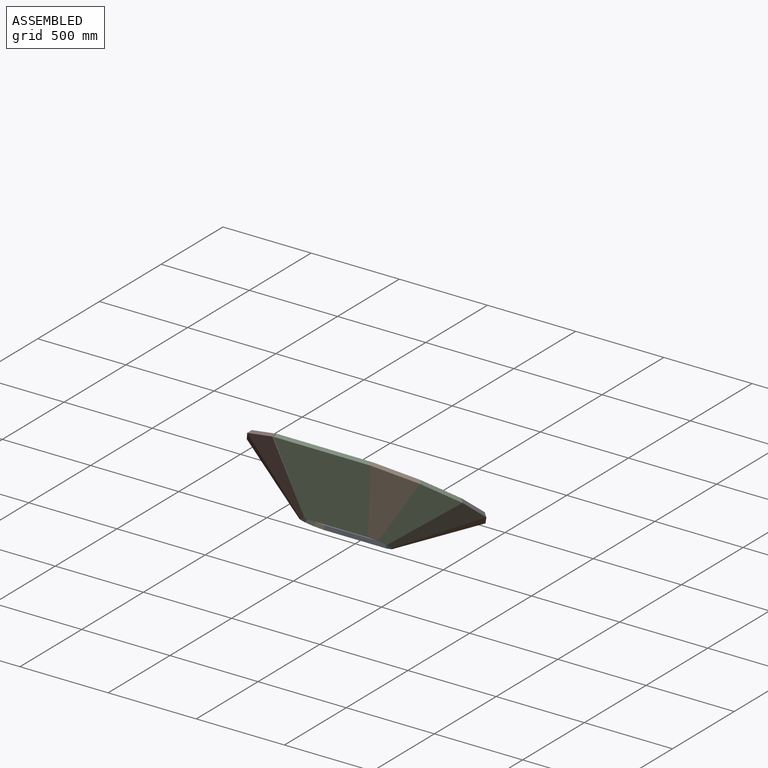
[diagram: assembled view]
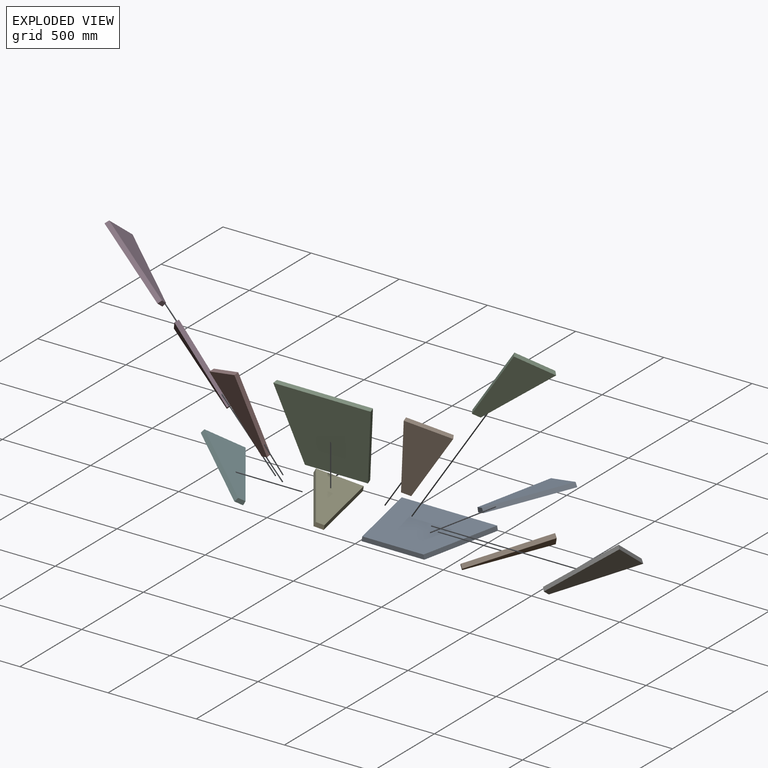
[diagram: exploded view]
GUIDED TOUR — MATED ASSEMBLY (Onshape document fef243385f15503025100094, AutoMate assembly fef243385f15503025100094_fdf8a2c3b585b18445a89479_61b1119e6c412c0903139617_default)

This assembly has 12 components, labeled P0..P11 below (a component is one placed occurrence of a part; the same part can appear more than once), held together by 11 mates. A mate is a constraint between two components; its type names the relative motion it leaves free:
  FASTENED — locks the two components together rigidly (no relative motion).
Axis/direction vectors are unit vectors and 'through' points are millimeter coordinates, both in the assembly's world frame.

MATES
  1. FASTENED "Fastened 8": P4 <-> P5, direction (0.568, -0.813, -0.126) through (-354.65, 169.88, 44.73) mm
  2. FASTENED "Fastened 10": P3 <-> P11, direction (0.779, -0.196, -0.596) through (-429.61, -49.61, 211.94) mm
  3. FASTENED "Fastened 2": P8 <-> P1, direction (0.568, 0.813, 0.126) through (354.65, 169.88, 44.73) mm
  4. FASTENED "Fastened 5": P2 <-> P9, direction (0.573, -0.091, 0.814) through (356.33, -151.88, 289.85) mm
  5. FASTENED "Fastened 4": P6 <-> P2, direction (0.779, 0.196, 0.596) through (429.61, -49.61, 211.94) mm
  6. FASTENED "Fastened 9": P5 <-> P3, direction (0.777, -0.527, -0.344) through (-428.99, 68.10, 122.26) mm
  7. FASTENED "Fastened 1": P0 <-> P8, direction (0.208, 0.978, 0.000) through (226.39, 228.60, 0.00) mm
  8. FASTENED "Fastened 3": P1 <-> P6, direction (0.777, 0.527, 0.344) through (428.99, 68.10, 122.26) mm
  9. FASTENED "Fastened 7": P0 <-> P4, direction (0.208, -0.978, 0.000) through (-226.39, 228.60, 0.00) mm
  10. FASTENED "Fastened 11": P11 <-> P7, direction (0.573, 0.091, -0.814) through (-356.33, -151.88, 289.85) mm
  11. FASTENED "Fastened 6": P9 <-> P10, direction (0.214, -0.258, 0.942) through (228.69, -211.44, 335.22) mm

ASSEMBLY ORDER
  1. P4 — the base component [order verified]
  2. P0 [order verified]
  3. P10 [order verified]
  4. P7 [order verified]
  5. P5 [order verified]
  6. P11 [order verified]
  7. P8 [order verified]
  8. P9 [order verified]
  9. P1 [order verified]
  10. P2 [order verified]
  11. P3 [order verified]
  12. P6 [order verified]
Order-tag legend:
  [order verified] — this step's position reverses a verified removal order: the component was checked to insert without passing through the ones already placed.

Of the 12 components, 12 carry the full construction recipe — the FeatureScript program that regenerates the part's solid from scratch; the rest are supplied as boundary geometry only.
Each toured component is shown spotlighted twice — in the assembled view, then in the exploded view, where a leader line traces a displaced component back to its assembled socket (saturated green if recipe-attached, orange if geometry-only; every other component desaturated gray) — followed by its recipe or geometry summary and the mates that hold it.
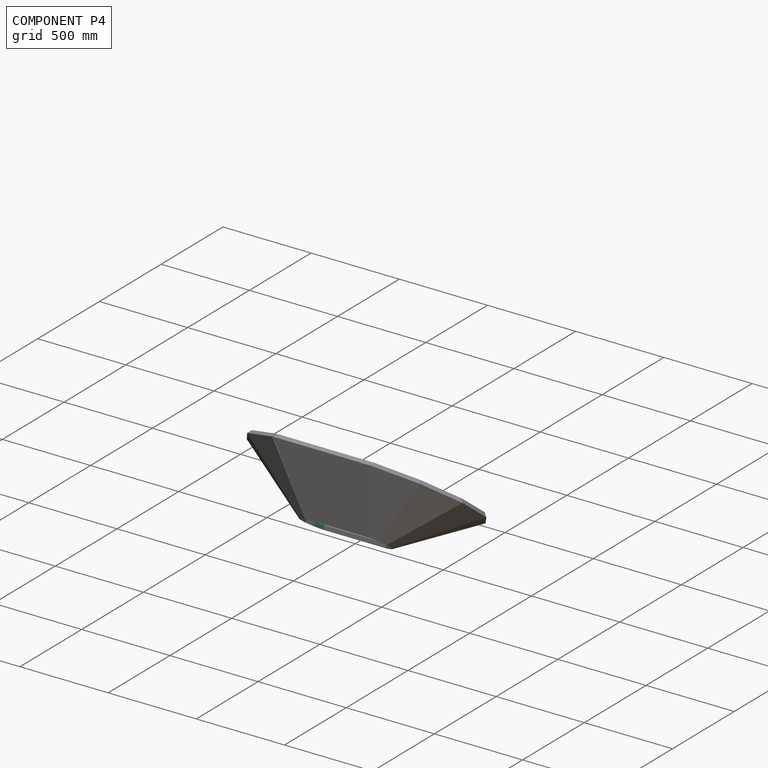
[diagram: component P4 — assembled]
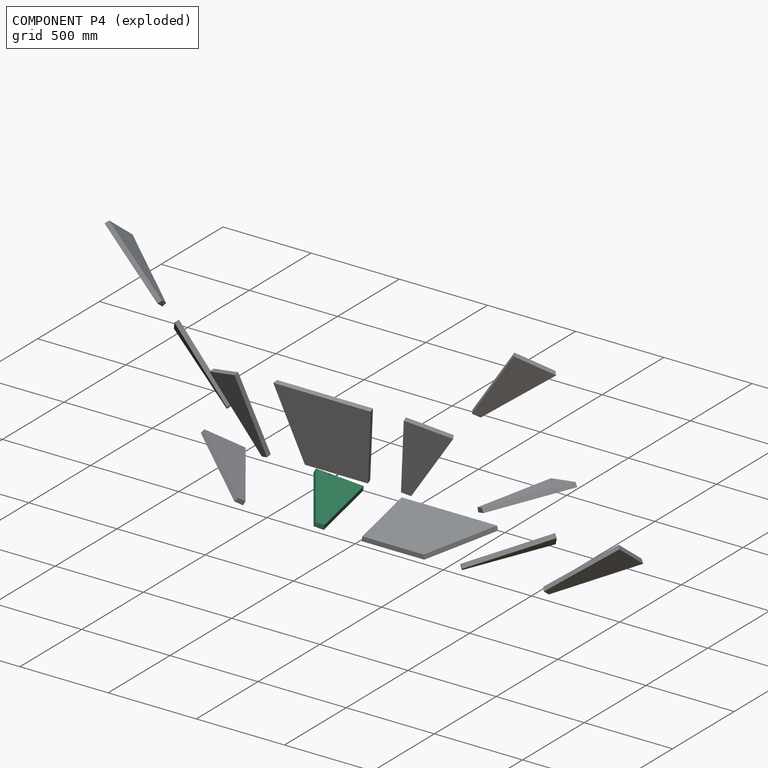
[diagram: component P4 — exploded]
COMPONENT P4 — same part as P1 (CADFS 00753921); its construction recipe is shown at P1.
Held by: FASTENED mate "Fastened 8" to P5; FASTENED mate "Fastened 7" to P0.
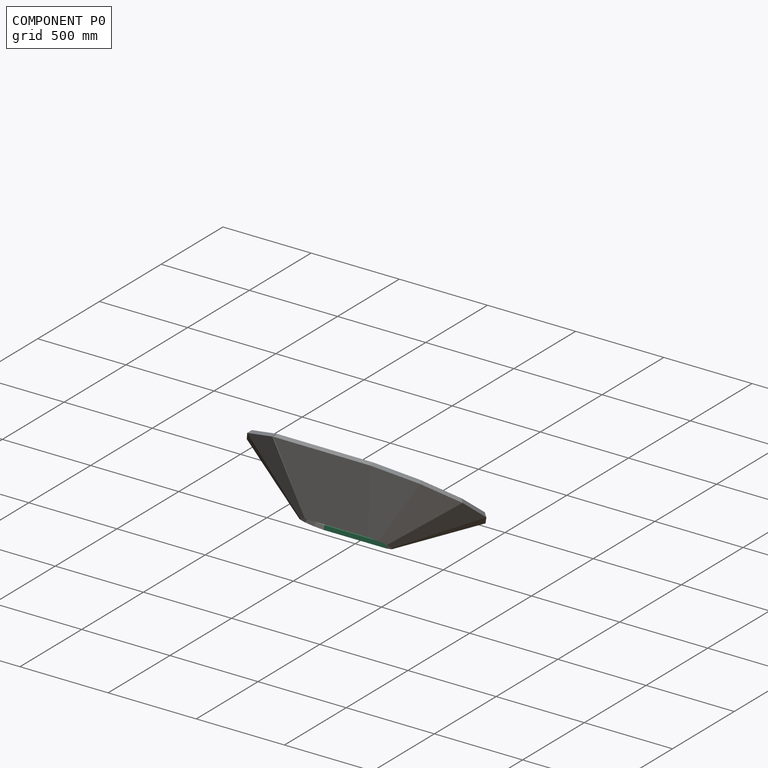
[diagram: component P0 — assembled]
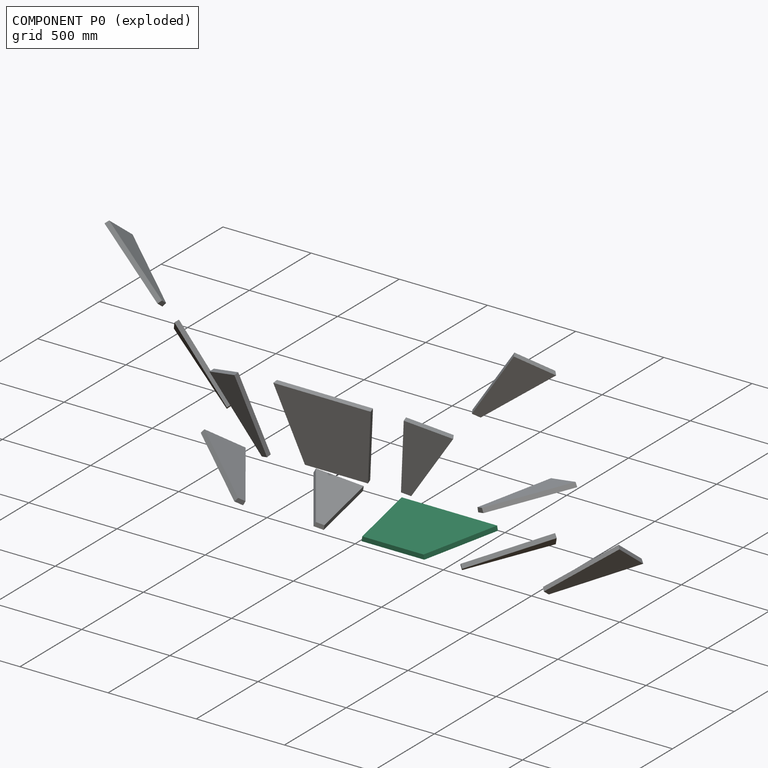
[diagram: component P0 — exploded]
COMPONENT P0 — recipe-attached (CADFS 00753922, mesh-verified: the recipe's output STEP matches this component's geometry to below the mesh-comparison resolution (tessellation chordal tolerance ~1.07 mm)).
Held by: FASTENED mate "Fastened 1" to P8; FASTENED mate "Fastened 7" to P4.
Construction recipe (FeatureScript — the CAD program that rebuilds this solid; sketch coordinates are in the units given by the * unit suffixes, e.g. mm):

FeatureScript 1511;
import(path : "onshape/std/geometry.fs", version : "1511.0");
import(path : "onshape/std/common.fs", version : "1511.0");
const mm = millimeter;
const VERTEX = EntityType.VERTEX;
const EDGE = EntityType.EDGE;
const FACE = EntityType.FACE;
const BODY = EntityType.BODY;
function v(x, y){return vector(x, y);}
function OD(order){return orderDisambiguation(order);}
function OSD(set){return originalSetDisambiguation(set);}
function TD(topology){return topologyDisambiguation(topology);}
function TDD(query){return trueDependencyDisambiguation(query);}
function sQuery(a, b, c) {return sketchEntityQuery(a, b, c);}

annotation { "Feature Type Name" : "Feature", "Feature Type Description" : "" }
export const myFeature = defineFeature(function(context is Context, id is Id, definition is map)
    precondition{}
    {
        {
            assignVariable(context, id + "F0", {"name" : "Chamfer", "anyValue" : 9});
        }
        {
            var Q0;
            Q0=qCreatedBy(makeId("Top.planeOp"),FACE);
            var sketch = newSketch(context, id + "F1", { "sketchPlane" : qUnion([Q0])});
            skLineSegment(sketch, "E0", {"start": v(-177.8, 0) * mm, "end": v(177.8, 0) * mm});
            skLineSegment(sketch, "E1", {"start": v(177.8, 0) * mm, "end": v(274.98, 457.2) * mm});
            skLineSegment(sketch, "E2", {"start": v(274.98, 457.2) * mm, "end": v(-274.98, 457.2) * mm});
            skLineSegment(sketch, "E3", {"start": v(-274.98, 457.2) * mm, "end": v(-177.8, 0) * mm});
            skLineSegment(sketch, "E4", {"start": v(0, 0) * mm, "end": v(0, 457.2) * mm, "construction": true});
            skSolve(sketch);
        }
        {
            var Q0;
            Q0 = qSketchRegion(id + "F1", true);
            extrude(context, id + "F2", {"entities" : qUnion([Q0]), "depth" : 25.4 * mm, "offsetDistance" : 25.4 * mm});
        }
        {
            var Q0;
            Q0=makeQuery(id+"F2.opExtrude","CAP_EDGE",EDGE,{"disambiguationData":[OSD([sQuery(id+"F1.wireOp",EDGE,"E3")])],"isStart":false});
            var Q1;
            Q1=makeQuery(id+"F2.opExtrude","CAP_EDGE",EDGE,{"disambiguationData":[OSD([sQuery(id+"F1.wireOp",EDGE,"E1")])],"isStart":false});
            chamfer(context, id + "F3", {"entities" : qUnion([Q0, Q1]), "chamferType" : ChamferType.OFFSET_ANGLE, "width" : 25.4 * mm, "oppositeDirection" : true, "angle" : (getVariable(context, 'Chamfer')) * degree, "tangentPropagation" : true});
        }
    });
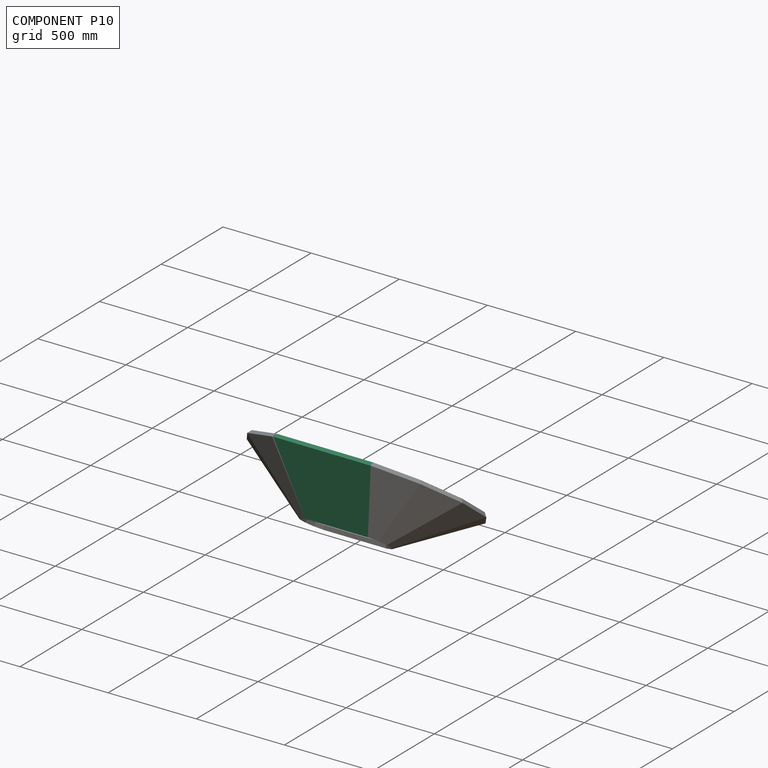
[diagram: component P10 — assembled]
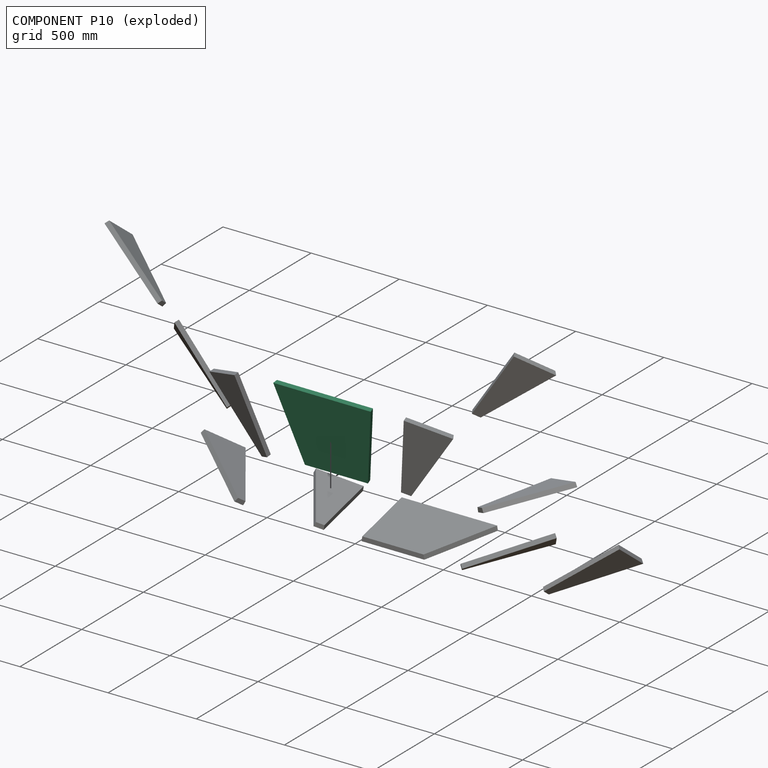
[diagram: component P10 — exploded]
COMPONENT P10 — same part as P0 (CADFS 00753922); its construction recipe is shown at P0.
Held by: FASTENED mate "Fastened 6" to P9.
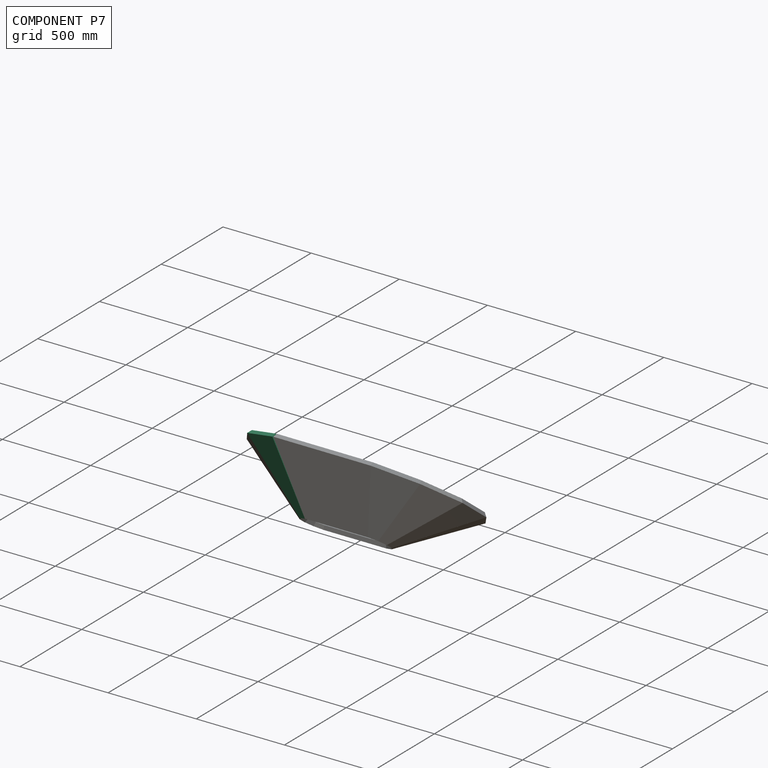
[diagram: component P7 — assembled]
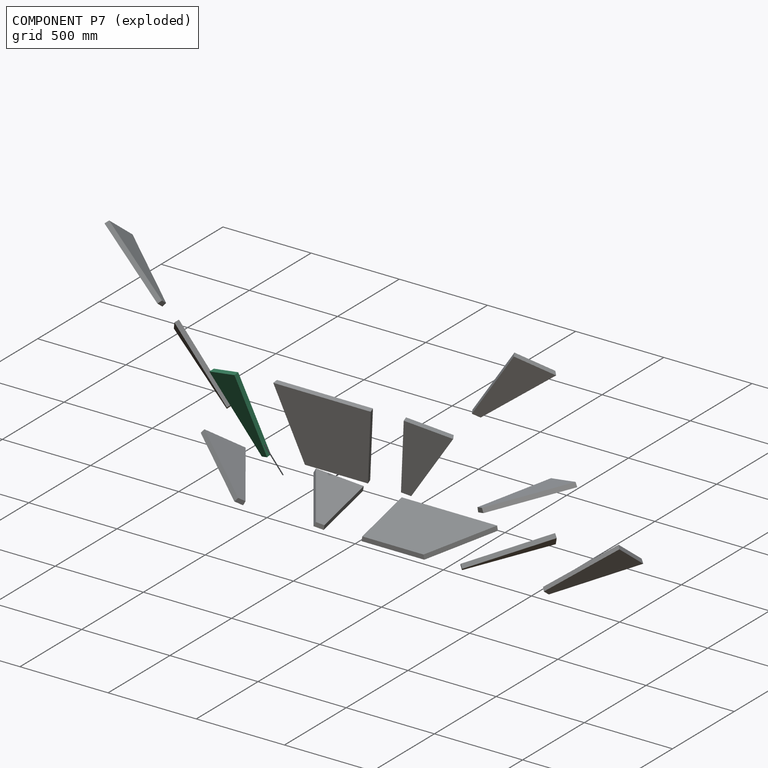
[diagram: component P7 — exploded]
COMPONENT P7 — same part as P1 (CADFS 00753921); its construction recipe is shown at P1.
Held by: FASTENED mate "Fastened 11" to P11.
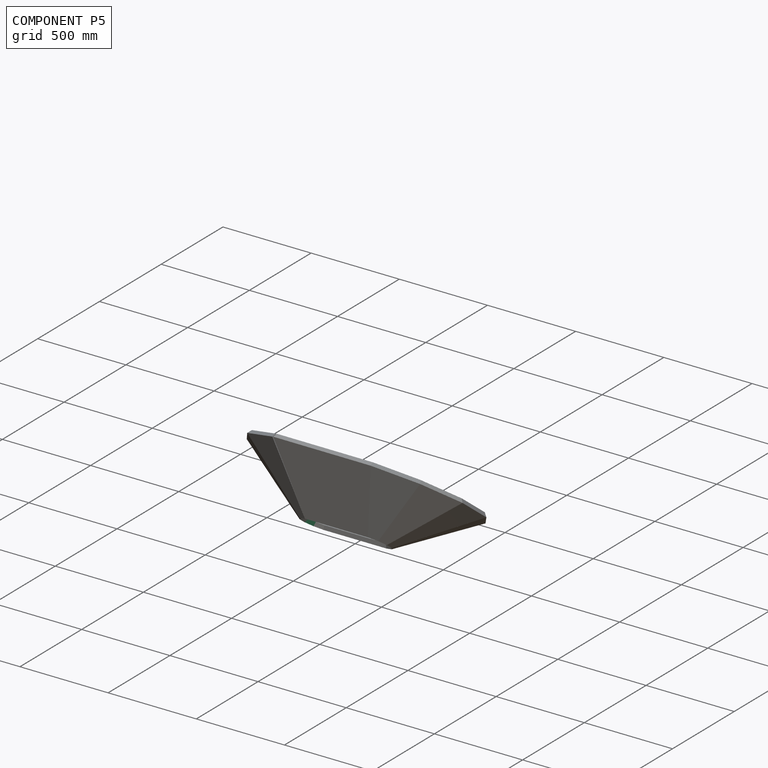
[diagram: component P5 — assembled]
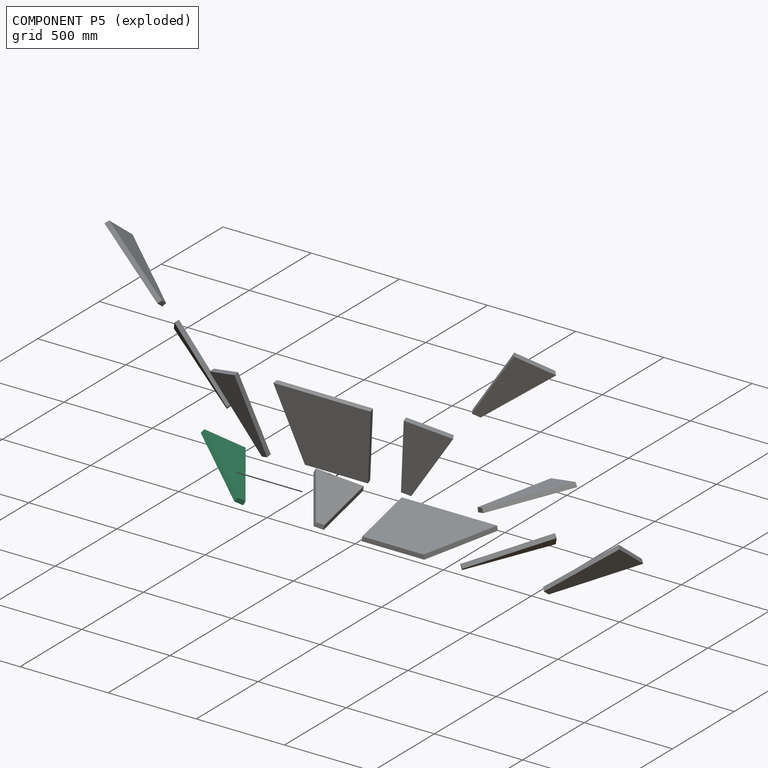
[diagram: component P5 — exploded]
COMPONENT P5 — same part as P1 (CADFS 00753921); its construction recipe is shown at P1.
Held by: FASTENED mate "Fastened 8" to P4; FASTENED mate "Fastened 9" to P3.
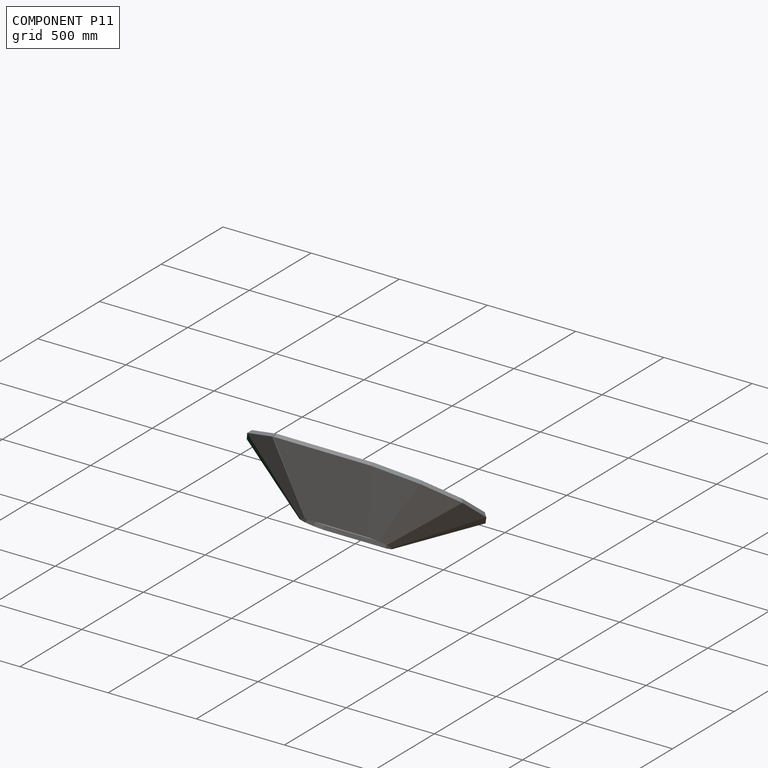
[diagram: component P11 — assembled]
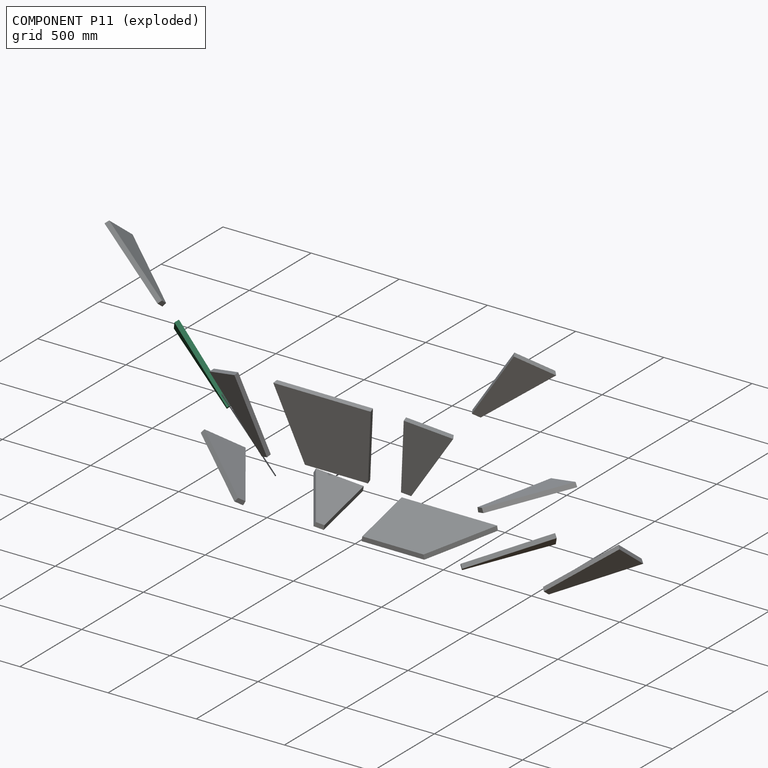
[diagram: component P11 — exploded]
COMPONENT P11 — same part as P1 (CADFS 00753921); its construction recipe is shown at P1.
Held by: FASTENED mate "Fastened 10" to P3; FASTENED mate "Fastened 11" to P7.
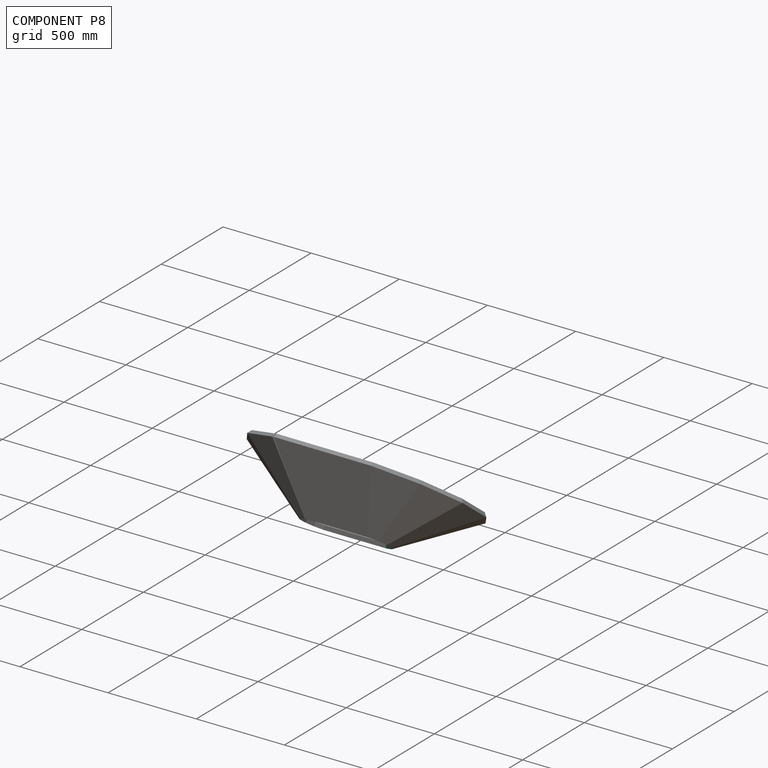
[diagram: component P8 — assembled]
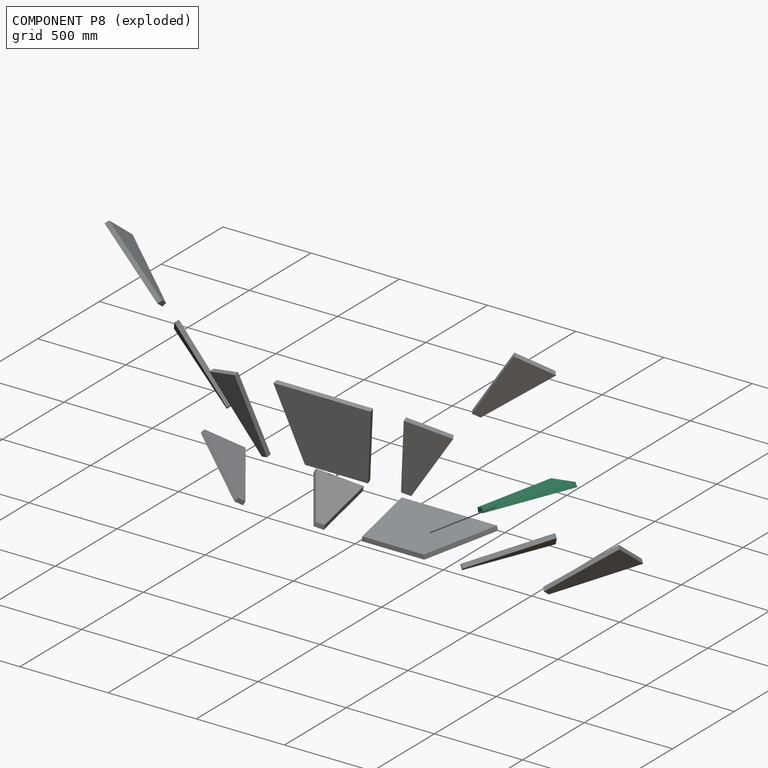
[diagram: component P8 — exploded]
COMPONENT P8 — same part as P1 (CADFS 00753921); its construction recipe is shown at P1.
Held by: FASTENED mate "Fastened 2" to P1; FASTENED mate "Fastened 1" to P0.
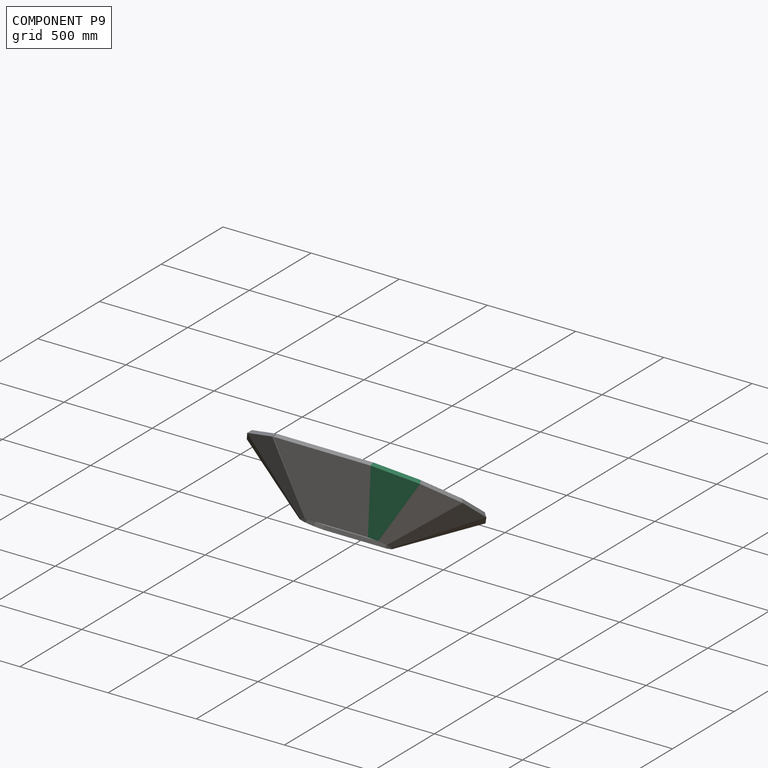
[diagram: component P9 — assembled]
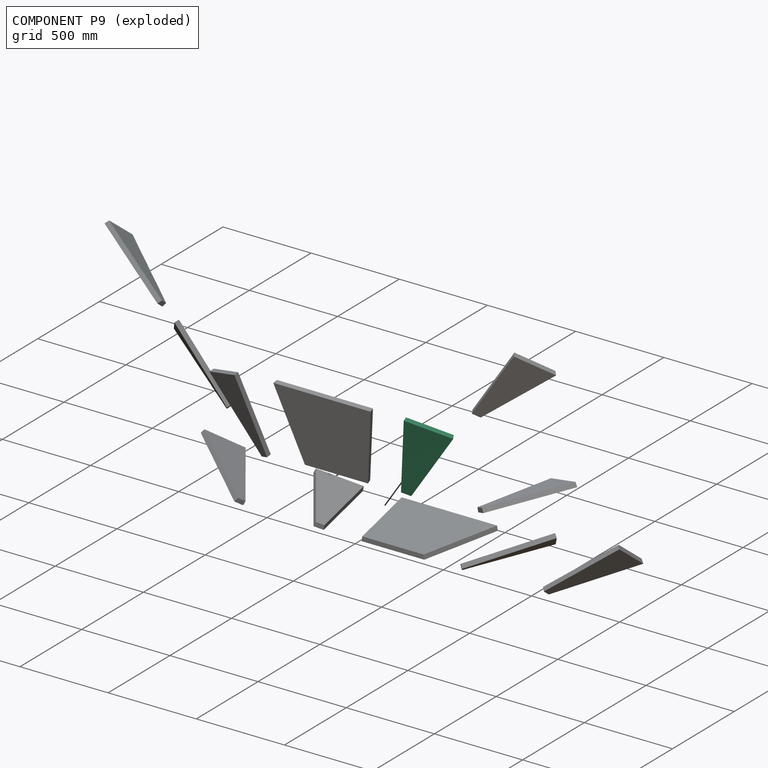
[diagram: component P9 — exploded]
COMPONENT P9 — same part as P1 (CADFS 00753921); its construction recipe is shown at P1.
Held by: FASTENED mate "Fastened 5" to P2; FASTENED mate "Fastened 6" to P10.
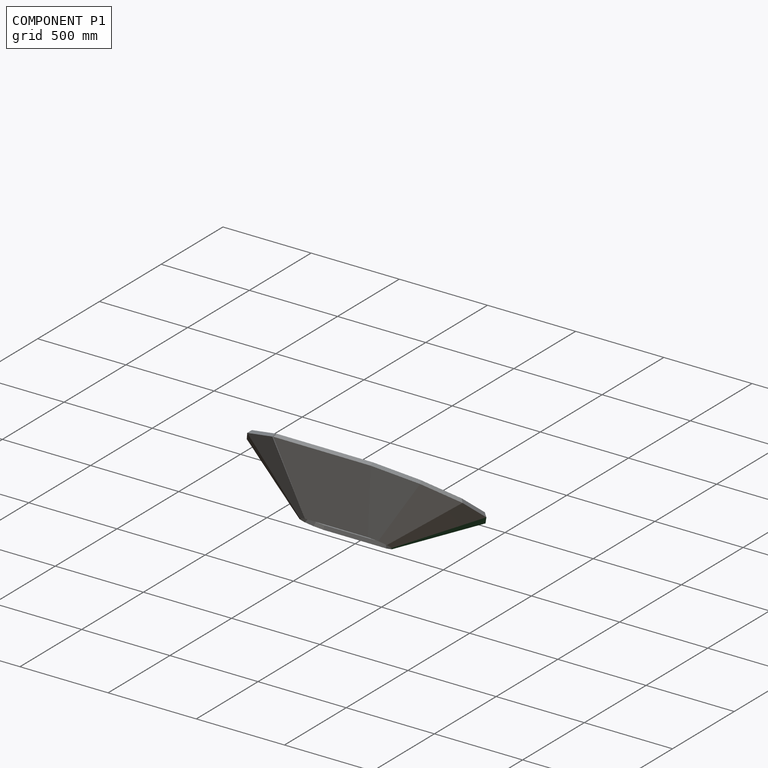
[diagram: component P1 — assembled]
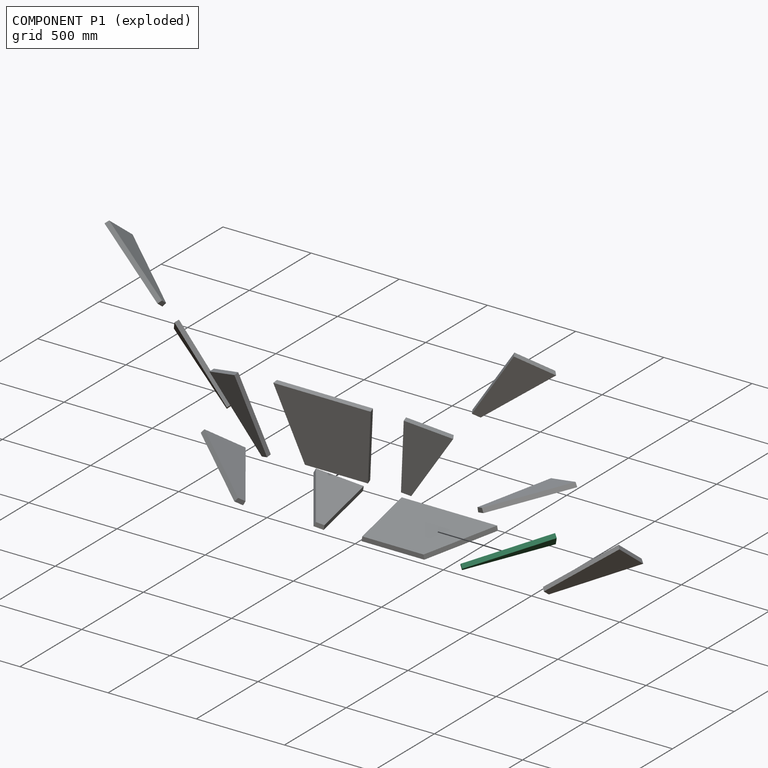
[diagram: component P1 — exploded]
COMPONENT P1 — recipe-attached (CADFS 00753921, mesh-verified: the recipe's output STEP matches this component's geometry to below the mesh-comparison resolution (tessellation chordal tolerance ~0.779 mm)).
Held by: FASTENED mate "Fastened 2" to P8; FASTENED mate "Fastened 3" to P6.
Construction recipe (FeatureScript — the CAD program that rebuilds this solid; sketch coordinates are in the units given by the * unit suffixes, e.g. mm):

FeatureScript 1511;
import(path : "onshape/std/geometry.fs", version : "1511.0");
import(path : "onshape/std/common.fs", version : "1511.0");
const mm = millimeter;
const VERTEX = EntityType.VERTEX;
const EDGE = EntityType.EDGE;
const FACE = EntityType.FACE;
const BODY = EntityType.BODY;
function v(x, y){return vector(x, y);}
function OD(order){return orderDisambiguation(order);}
function OSD(set){return originalSetDisambiguation(set);}
function TD(topology){return topologyDisambiguation(topology);}
function TDD(query){return trueDependencyDisambiguation(query);}
function sQuery(a, b, c) {return sketchEntityQuery(a, b, c);}

annotation { "Feature Type Name" : "Feature", "Feature Type Description" : "" }
export const myFeature = defineFeature(function(context is Context, id is Id, definition is map)
    precondition{}
    {
        {
            assignVariable(context, id + "F0", {"name" : "Chamfer", "anyValue" : 9});
        }
        {
            var Q0;
            Q0=qCreatedBy(makeId("Top.planeOp"),FACE);
            var sketch = newSketch(context, id + "F1", { "sketchPlane" : qUnion([Q0])});
            skLineSegment(sketch, "E0", {"start": v(-25.4, 0) * mm, "end": v(25.4, 0) * mm});
            skLineSegment(sketch, "E1", {"start": v(25.4, 0) * mm, "end": v(122.58, 457.2) * mm});
            skLineSegment(sketch, "E2", {"start": v(122.58, 457.2) * mm, "end": v(-122.58, 457.2) * mm});
            skLineSegment(sketch, "E3", {"start": v(-122.58, 457.2) * mm, "end": v(-25.4, 0) * mm});
            skLineSegment(sketch, "E4", {"start": v(0, 0) * mm, "end": v(0, 457.2) * mm, "construction": true});
            skSolve(sketch);
        }
        {
            var Q0;
            Q0 = qSketchRegion(id + "F1", true);
            extrude(context, id + "F2", {"entities" : qUnion([Q0]), "depth" : 25.4 * mm, "offsetDistance" : 25.4 * mm});
        }
        {
            var Q0;
            Q0=makeQuery(id+"F2.opExtrude","CAP_EDGE",EDGE,{"disambiguationData":[OSD([sQuery(id+"F1.wireOp",EDGE,"E3")])],"isStart":false});
            var Q1;
            Q1=makeQuery(id+"F2.opExtrude","CAP_EDGE",EDGE,{"disambiguationData":[OSD([sQuery(id+"F1.wireOp",EDGE,"E1")])],"isStart":false});
            chamfer(context, id + "F3", {"entities" : qUnion([Q0, Q1]), "chamferType" : ChamferType.OFFSET_ANGLE, "width" : 25.4 * mm, "oppositeDirection" : true, "angle" : (getVariable(context, 'Chamfer')) * degree, "tangentPropagation" : true});
        }
    });
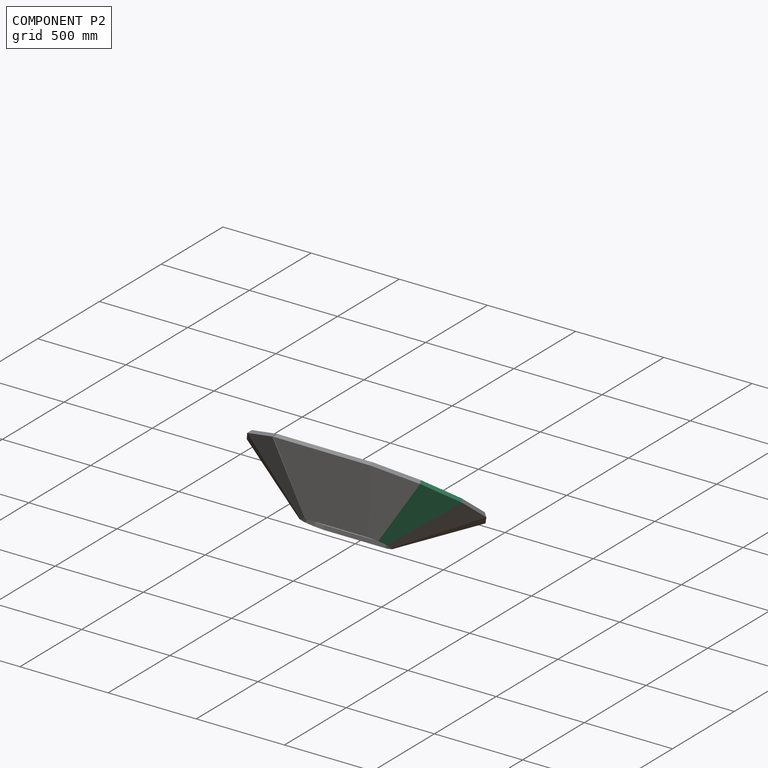
[diagram: component P2 — assembled]
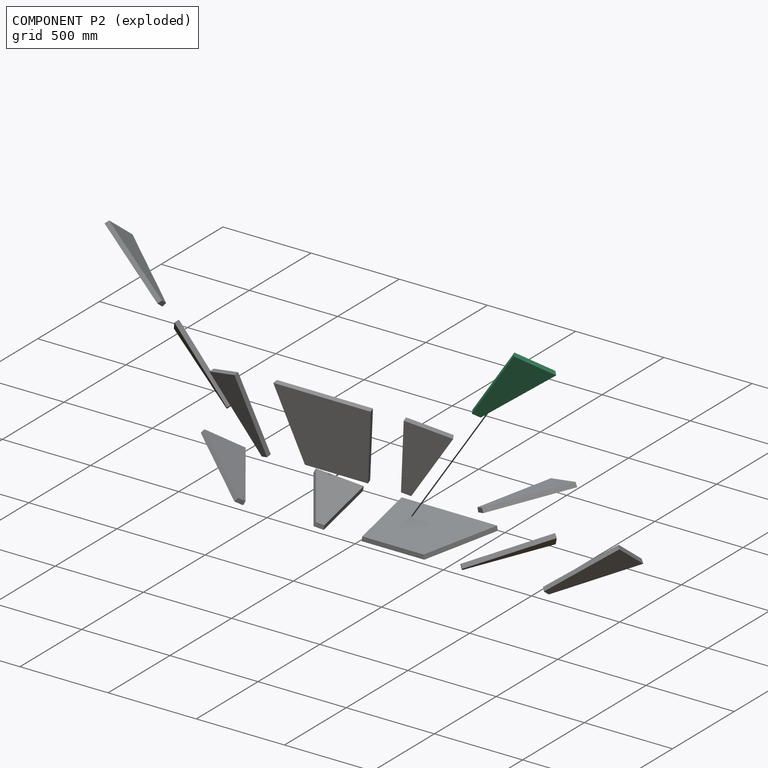
[diagram: component P2 — exploded]
COMPONENT P2 — same part as P1 (CADFS 00753921); its construction recipe is shown at P1.
Held by: FASTENED mate "Fastened 5" to P9; FASTENED mate "Fastened 4" to P6.
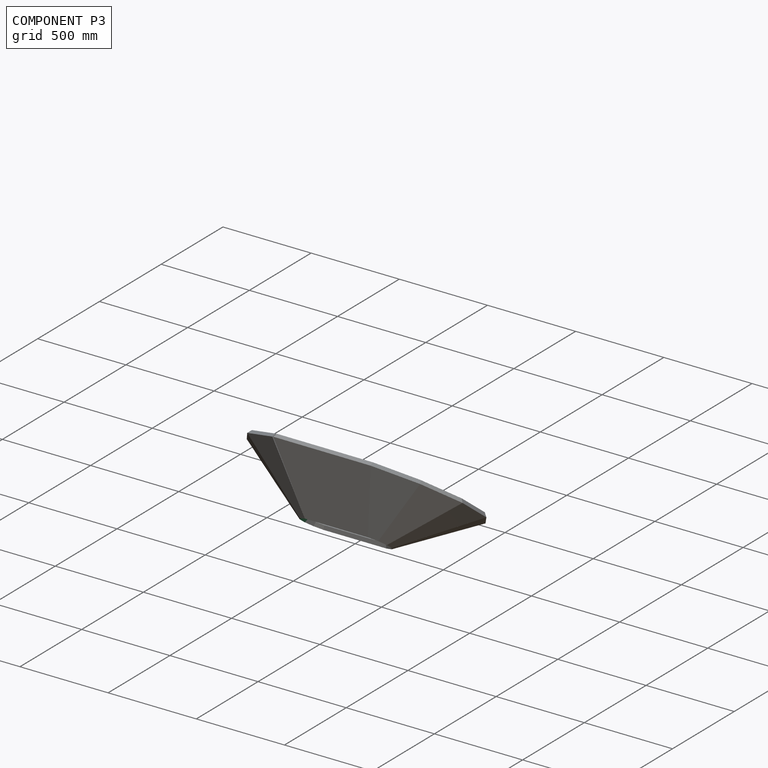
[diagram: component P3 — assembled]
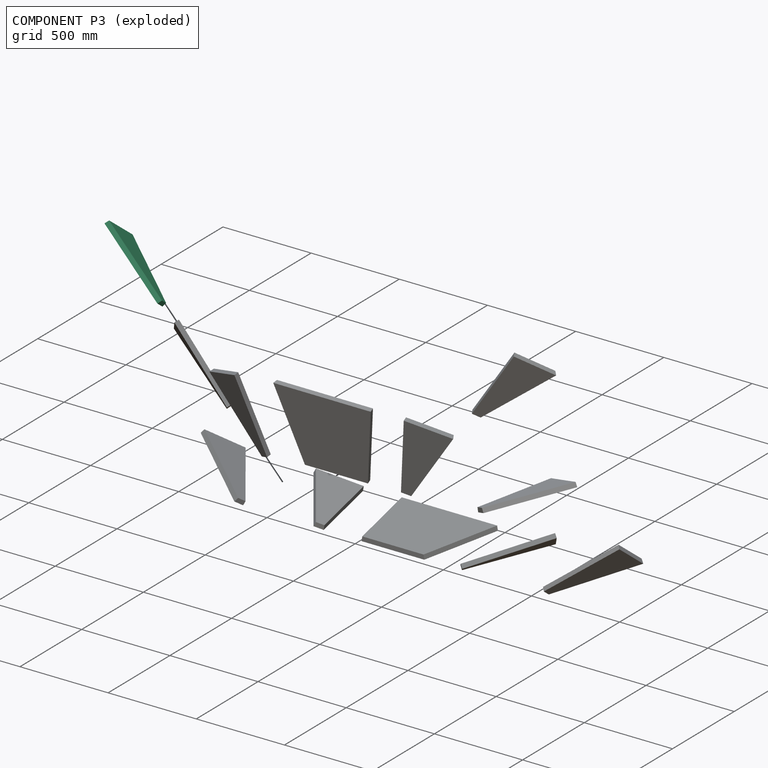
[diagram: component P3 — exploded]
COMPONENT P3 — same part as P1 (CADFS 00753921); its construction recipe is shown at P1.
Held by: FASTENED mate "Fastened 10" to P11; FASTENED mate "Fastened 9" to P5.
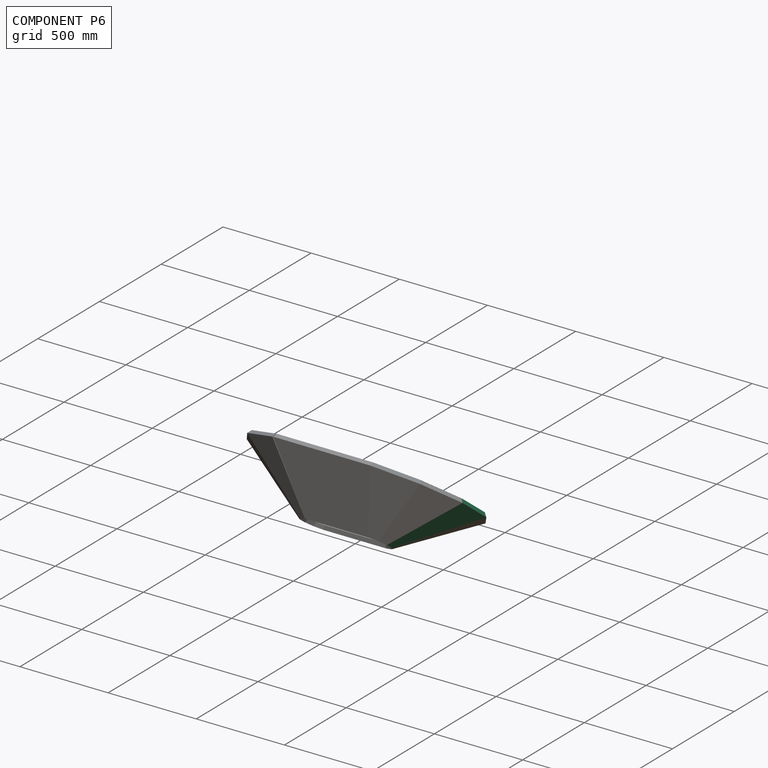
[diagram: component P6 — assembled]
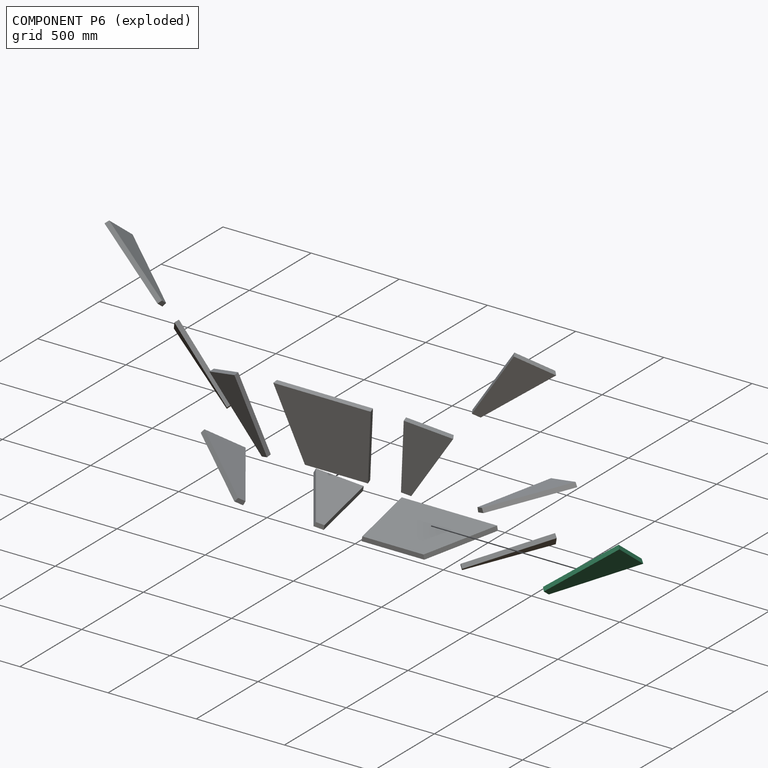
[diagram: component P6 — exploded]
COMPONENT P6 — same part as P1 (CADFS 00753921); its construction recipe is shown at P1.
Held by: FASTENED mate "Fastened 4" to P2; FASTENED mate "Fastened 3" to P1.
PROVENANCE & LICENSES
Assembly (occurrences, transforms, mates, per-part STEP geometry): AutoMate dataset, Zenodo record 7776208, CC0.
Construction recipes: CADFS (HuggingFace VladPyatov/CADFS, CC-BY-4.0, layered over the ABC dataset), FeatureScript reconstruction programs keyed by ABC model id.
Join: ABC meta listings map ABC model id -> Onshape documentId; within a shared document, parts are matched by geometric signature (bounding-box dims + volume at 0.1% relative tolerance, exact B-rep face/solid counts).
Verification: 12 of this assembly's 12 components carry a recipe attachment, and every attachment is mesh-verified: the CADFS STEP and the AutoMate member STEP were compared as meshes in their shared local frame (symmetric sampled-point-to-mesh distance); worst across the 12 attachments: below the mesh-comparison resolution (tessellation chordal tolerance ~1.07 mm) on a 716 mm part.
Renders: orthographic iso camera (az 35 / el 25); the floor grid conveys scale (grid pitch printed in each image; no ruler). In the exploded view each component is displaced by its stored offset vector: the offsets alone carry the explosion direction (mate normal/axis signs are not orientation cues and do not encode it), and separation distances are assigned per mate-chain, not proportionally to assembly-order depth.
